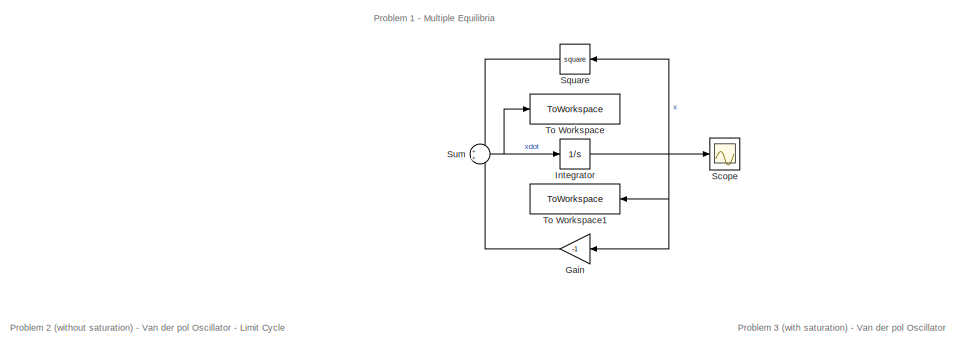
[diagram: root canvas - part 1/2, top left region]
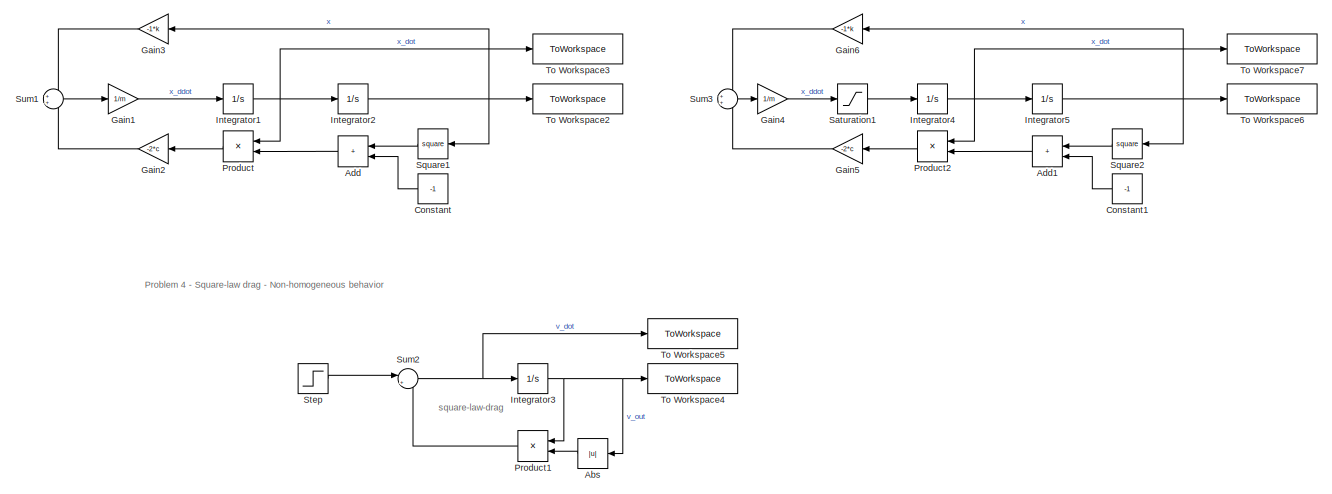
[diagram: root canvas - part 2/2, full width, bottom band]
MODEL slx_86ca55c8984d
KIND model
CONFIG AbsTol = auto
CONFIG EnableMultiTasking = off
CONFIG FixedStep = 1e-3
CONFIG MaxStep = auto
CONFIG MinStep = auto
CONFIG RelTol = 1e-3
CONFIG SampleTimeConstraint = Unconstrained
CONFIG SolverName = VariableStepAuto
CONFIG StartTime = 0.0
CONFIG StopTime = t_sim
BLOCK [Abs] Abs
  Commented = on
  SaturateOnIntegerOverflow = off
BLOCK [Sum] Add
  Commented = on
  IconShape = rectangular
  Ports = [2, 1]
BLOCK [Sum] Add1
  Commented = on
  IconShape = rectangular
  Ports = [2, 1]
BLOCK [Constant] Constant
  Commented = on
  Value = -1
BLOCK [Constant] Constant1
  Commented = on
  Value = -1
BLOCK [Gain] Gain
  Gain = -1
BLOCK [Gain] Gain1
  Commented = on
  Gain = 1/m
BLOCK [Gain] Gain2
  Commented = on
  Gain = -2*c
BLOCK [Gain] Gain3
  Commented = on
  Gain = -1*k
BLOCK [Gain] Gain4
  Commented = on
  Gain = 1/m
BLOCK [Gain] Gain5
  Commented = on
  Gain = -2*c
BLOCK [Gain] Gain6
  Commented = on
  Gain = -1*k
BLOCK [Integrator] Integrator
  InitialCondition = x_dot0
  Ports = [1, 1]
BLOCK [Integrator] Integrator1
  Commented = on
  InitialCondition = x_dot0
  Ports = [1, 1]
BLOCK [Integrator] Integrator2
  Commented = on
  InitialCondition = x_0
  Ports = [1, 1]
BLOCK [Integrator] Integrator3
  Commented = on
  InitialCondition = vdot0
  Ports = [1, 1]
BLOCK [Integrator] Integrator4
  Commented = on
  InitialCondition = x_dot0
  Ports = [1, 1]
BLOCK [Integrator] Integrator5
  Commented = on
  InitialCondition = x_0
  Ports = [1, 1]
BLOCK [Product] Product
  Commented = on
  Ports = [2, 1]
BLOCK [Product] Product1
  Commented = on
  Ports = [2, 1]
BLOCK [Product] Product2
  Commented = on
  Ports = [2, 1]
BLOCK [Saturate] Saturation1
  Commented = on
  LowerLimit = -1.5
  UpperLimit = 1.5
BLOCK [Scope] Scope
  Floating = off
  NumInputPorts = 1
  Ports = [1]
  ScopeSpecificationString = Simulink.scopes.TimeScopeBlockCfg('CurrentConfiguration', extmgr.ConfigurationSet(extmgr.Configuration('Core','General UI',true),extmgr.Configuration('Core','Source UI',true),extmgr.Configuration('Sources','WiredSimulink',true),extmgr.Configuration('Visuals','Time Domain',true,'SerializedDisplays',{struct('MinYLimReal','0.6205','MaxYLimReal','4.8155','YLabelReal','','MinYLimMag','0.6205','MaxYLimM...<+1311ch>
BLOCK [Math] Square
  Operator = square
  Ports = [1, 1]
BLOCK [Math] Square1
  Commented = on
  Operator = square
  Ports = [1, 1]
BLOCK [Math] Square2
  Commented = on
  Operator = square
  Ports = [1, 1]
BLOCK [Step] Step
  After = step_val
  Commented = on
  SampleTime = 0
  Time = 0
BLOCK [Sum] Sum
  Ports = [2, 1]
BLOCK [Sum] Sum1
  Commented = on
  Ports = [2, 1]
BLOCK [Sum] Sum2
  Commented = on
  Inputs = |+-
  Ports = [2, 1]
BLOCK [Sum] Sum3
  Commented = on
  Ports = [2, 1]
BLOCK [ToWorkspace] To Workspace
  FixptAsFi = on
  MaxDataPoints = inf
  Ports = [1]
  SampleTime = -1
  SaveFormat = Timeseries
  VariableName = x_dot
BLOCK [ToWorkspace] To Workspace1
  FixptAsFi = on
  MaxDataPoints = inf
  Ports = [1]
  SampleTime = -1
  SaveFormat = Timeseries
  VariableName = x
BLOCK [ToWorkspace] To Workspace2
  Commented = on
  FixptAsFi = on
  MaxDataPoints = inf
  Ports = [1]
  SampleTime = -1
  SaveFormat = Timeseries
  VariableName = x_pos
BLOCK [ToWorkspace] To Workspace3
  Commented = on
  FixptAsFi = on
  MaxDataPoints = inf
  Ports = [1]
  SampleTime = -1
  SaveFormat = Timeseries
  VariableName = x_dot
BLOCK [ToWorkspace] To Workspace4
  Commented = on
  FixptAsFi = on
  MaxDataPoints = inf
  Ports = [1]
  SampleTime = -1
  SaveFormat = Timeseries
  VariableName = v_out
BLOCK [ToWorkspace] To Workspace5
  Commented = on
  FixptAsFi = on
  MaxDataPoints = inf
  Ports = [1]
  SampleTime = -1
  SaveFormat = Timeseries
  VariableName = v_dot
BLOCK [ToWorkspace] To Workspace6
  Commented = on
  FixptAsFi = on
  MaxDataPoints = inf
  Ports = [1]
  SampleTime = -1
  SaveFormat = Timeseries
  VariableName = x_pos
BLOCK [ToWorkspace] To Workspace7
  Commented = on
  FixptAsFi = on
  MaxDataPoints = inf
  Ports = [1]
  SampleTime = -1
  SaveFormat = Timeseries
  VariableName = x_dot
ANNOTATION (root): Problem 1 - Multiple Equilibria
ANNOTATION (root): Problem 2 (without saturation) - Van der pol Oscillator - Limit Cycle
ANNOTATION (root): Problem 3 (with saturation) - Van der pol Oscillator
ANNOTATION (root): Problem 4 - Square-law drag - Non-homogeneous behavior
ANNOTATION (root): square-law-drag
LINE Abs:1 -> Product1:2
LINE Add1:1 -> Product2:2
LINE Add:1 -> Product:2
LINE Constant1:1 -> Add1:2
LINE Constant:1 -> Add:2
LINE Gain1:1 -> Integrator1:1
LINE Gain2:1 -> Sum1:2
LINE Gain3:1 -> Sum1:1
LINE Gain4:1 -> Saturation1:1
LINE Gain5:1 -> Sum3:2
LINE Gain6:1 -> Sum3:1
LINE Gain:1 -> Sum:2
NET Integrator1:1 -> Integrator2:1, Product:1, To Workspace3:1
NET Integrator2:1 -> Gain3:1, Square1:1, To Workspace2:1
NET Integrator3:1 -> Abs:1, Product1:1, To Workspace4:1
NET Integrator4:1 -> Integrator5:1, Product2:1, To Workspace7:1
NET Integrator5:1 -> Gain6:1, Square2:1, To Workspace6:1
NET Integrator:1 -> Gain:1, Scope:1, Square:1, To Workspace1:1
LINE Product1:1 -> Sum2:2
LINE Product2:1 -> Gain5:1
LINE Product:1 -> Gain2:1
LINE Saturation1:1 -> Integrator4:1
LINE Square1:1 -> Add:1
LINE Square2:1 -> Add1:1
LINE Square:1 -> Sum:1
LINE Step:1 -> Sum2:1
LINE Sum1:1 -> Gain1:1
NET Sum2:1 -> Integrator3:1, To Workspace5:1
LINE Sum3:1 -> Gain4:1
NET Sum:1 -> Integrator:1, To Workspace:1
note: NET lines group one-source signal fan-out (src -> all destinations, sorted); 1:1 wires keep LINE
